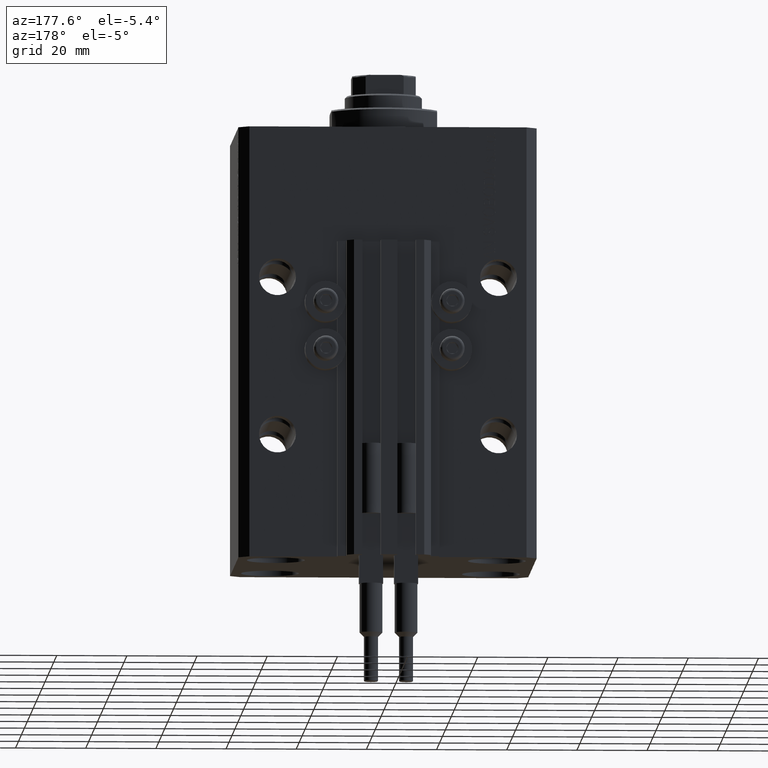
[diagram: clean part render]
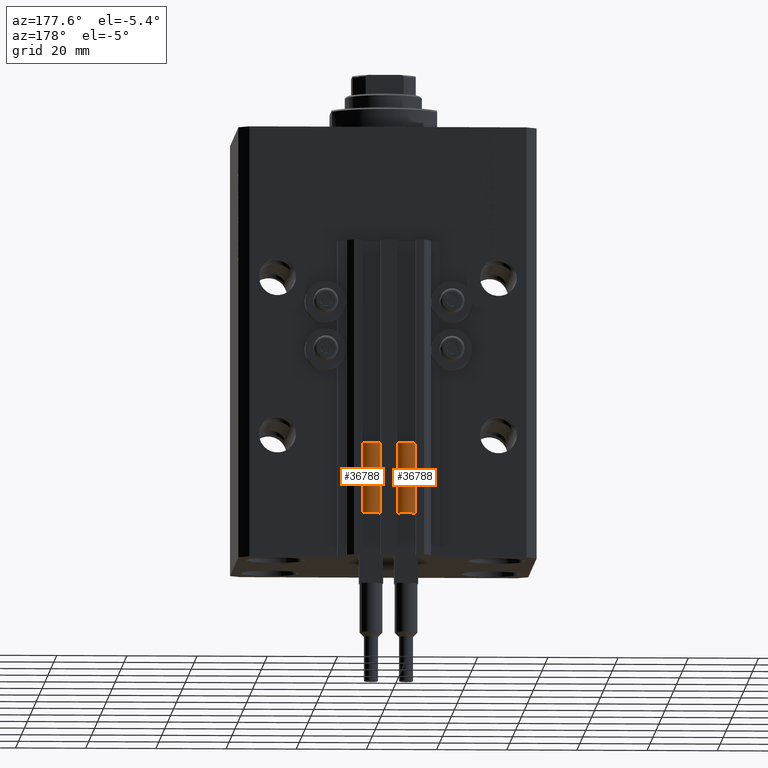
[diagram: same view with one multi-face feature highlighted, each face labeled with its STEP entity id]
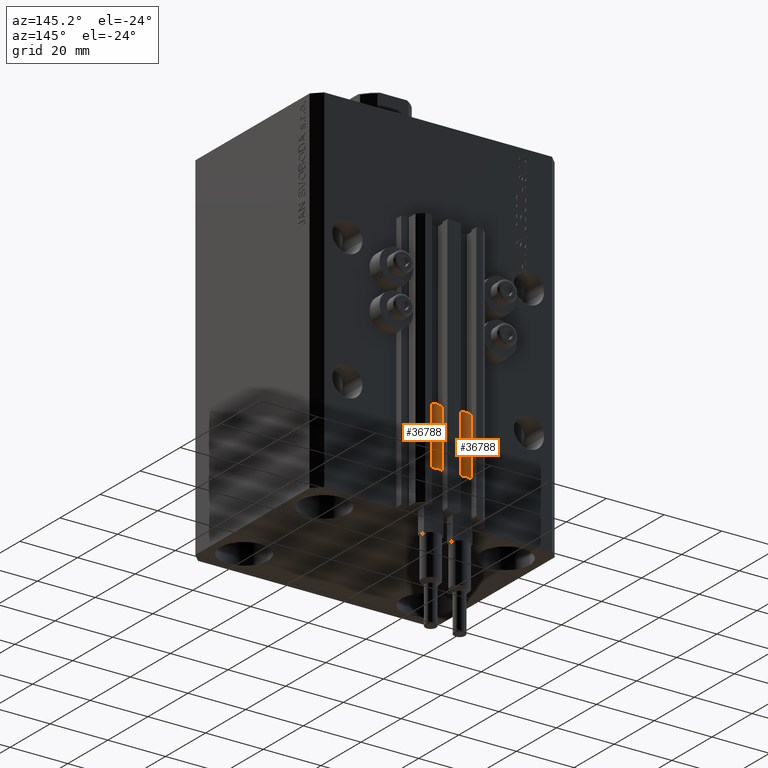
[diagram: same view with one multi-face feature highlighted, each face labeled with its STEP entity id]
A machine part, auxiliary view. The highlighted faces form ONE feature: a constant-radius fillet chain: 2 tangent blend faces with common blend radius 3.4 mm. The faces share edges in the B-rep.
A second angle (auxiliary view) of the same feature is appended — it is thin or edge-on in the first view.
Their STEP definitions:
[1] entity #36788 (Cylinder):
#1602 = DIRECTION ( 'NONE',  ( 1.000000000000000000, 0.000000000000000000, 0.000000000000000000 ) ) ;
#3159 = VERTEX_POINT ( 'NONE', #19286 ) ;
#3379 = CIRCLE ( 'NONE', #27076, 3.400000000000000355 ) ;
#5954 = CIRCLE ( 'NONE', #33616, 3.400000000000000355 ) ;
#6046 = DIRECTION ( 'NONE',  ( 1.000000000000000000, 0.000000000000000000, 0.000000000000000000 ) ) ;
#7261 = EDGE_CURVE ( 'NONE', #41343, #38492, #40167, .T. ) ;
#8473 = DIRECTION ( 'NONE',  ( -0.000000000000000000, -0.000000000000000000, -1.000000000000000000 ) ) ;
#9043 = CARTESIAN_POINT ( 'NONE',  ( 0.000000000000000000, 0.000000000000000000, 0.000000000000000000 ) ) ;
#9522 = DIRECTION ( 'NONE',  ( 0.000000000000000000, 0.000000000000000000, 1.000000000000000000 ) ) ;
#10007 = CARTESIAN_POINT ( 'NONE',  ( 0.000000000000000000, 0.000000000000000000, 20.00000000000000000 ) ) ;
#13118 = DIRECTION ( 'NONE',  ( -0.000000000000000000, -0.000000000000000000, -1.000000000000000000 ) ) ;
#13384 = VERTEX_POINT ( 'NONE', #46524 ) ;
#15469 = ORIENTED_EDGE ( 'NONE', *, *, #28868, .F. ) ;
#16060 = EDGE_CURVE ( 'NONE', #38492, #3159, #16823, .T. ) ;
#16823 = LINE ( 'NONE', #17064, #28538 ) ;
#17064 = CARTESIAN_POINT ( 'NONE',  ( -3.400000000000000355, 0.000000000000000000, 20.00000000000000000 ) ) ;
#18481 = ORIENTED_EDGE ( 'NONE', *, *, #26977, .T. ) ;
#19286 = CARTESIAN_POINT ( 'NONE',  ( -3.400000000000000355, 0.000000000000000000, 0.000000000000000000 ) ) ;
#20789 = DIRECTION ( 'NONE',  ( 1.000000000000000000, 0.000000000000000000, 0.000000000000000000 ) ) ;
#21029 = CARTESIAN_POINT ( 'NONE',  ( 0.000000000000000000, 0.000000000000000000, 20.00000000000000000 ) ) ;
#22788 = AXIS2_PLACEMENT_3D ( 'NONE', #21029, #28453, #20789 ) ;
#23760 = CARTESIAN_POINT ( 'NONE',  ( 0.000000000000000000, 0.000000000000000000, 20.00000000000000000 ) ) ;
#24118 = DIRECTION ( 'NONE',  ( 0.000000000000000000, 0.000000000000000000, 1.000000000000000000 ) ) ;
#24727 = FACE_OUTER_BOUND ( 'NONE', #35965, .T. ) ;
#26167 = DIRECTION ( 'NONE',  ( 0.000000000000000000, 0.000000000000000000, 1.000000000000000000 ) ) ;
#26977 = EDGE_CURVE ( 'NONE', #46535, #40571, #27259, .T. ) ;
#27076 = AXIS2_PLACEMENT_3D ( 'NONE', #10007, #9522, #1602 ) ;
#27259 = LINE ( 'NONE', #42346, #31755 ) ;
#28453 = DIRECTION ( 'NONE',  ( 0.000000000000000000, 0.000000000000000000, 1.000000000000000000 ) ) ;
#28538 = VECTOR ( 'NONE', #39070, 1000.000000000000000 ) ;
#28868 = EDGE_CURVE ( 'NONE', #13384, #41343, #3379, .T. ) ;
#29656 = CARTESIAN_POINT ( 'NONE',  ( -3.399999999999999467, -4.915049848600952119E-16, 20.00000000000000000 ) ) ;
#30188 = ORIENTED_EDGE ( 'NONE', *, *, #33567, .F. ) ;
#31269 = ORIENTED_EDGE ( 'NONE', *, *, #7261, .F. ) ;
#31755 = VECTOR ( 'NONE', #8473, 1000.000000000000000 ) ;
#31959 = AXIS2_PLACEMENT_3D ( 'NONE', #37053, #26167, #37532 ) ;
#32766 = AXIS2_PLACEMENT_3D ( 'NONE', #23760, #13118, #38843 ) ;
#32791 = CARTESIAN_POINT ( 'NONE',  ( -3.051229260478471428, 1.500000000000000000, 20.00000000000000000 ) ) ;
#32850 = CARTESIAN_POINT ( 'NONE',  ( 3.400000000000000355, 0.000000000000000000, 20.00000000000000000 ) ) ;
#33567 = EDGE_CURVE ( 'NONE', #46535, #13384, #36705, .T. ) ;
#33616 = AXIS2_PLACEMENT_3D ( 'NONE', #9043, #24118, #6046 ) ;
#35965 = EDGE_LOOP ( 'NONE', ( #30188, #18481, #40166, #48631, #31269, #15469 ) ) ;
#36705 = CIRCLE ( 'NONE', #31959, 3.400000000000000355 ) ;
#36788 = ADVANCED_FACE ( 'NONE', ( #24727 ), #42557, .T. ) ;
#37053 = CARTESIAN_POINT ( 'NONE',  ( 0.000000000000000000, 0.000000000000000000, 20.00000000000000000 ) ) ;
#37098 = CARTESIAN_POINT ( 'NONE',  ( 3.400000000000000355, 4.163799117101001052E-16, 0.000000000000000000 ) ) ;
#37532 = DIRECTION ( 'NONE',  ( 1.000000000000000000, 0.000000000000000000, 0.000000000000000000 ) ) ;
#38492 = VERTEX_POINT ( 'NONE', #29656 ) ;
#38843 = DIRECTION ( 'NONE',  ( -1.000000000000000000, 0.000000000000000000, 0.000000000000000000 ) ) ;
#39070 = DIRECTION ( 'NONE',  ( -0.000000000000000000, -0.000000000000000000, -1.000000000000000000 ) ) ;
#39137 = EDGE_CURVE ( 'NONE', #40571, #3159, #5954, .T. ) ;
#40166 = ORIENTED_EDGE ( 'NONE', *, *, #39137, .T. ) ;
#40167 = CIRCLE ( 'NONE', #22788, 3.400000000000000355 ) ;
#40571 = VERTEX_POINT ( 'NONE', #37098 ) ;
#41343 = VERTEX_POINT ( 'NONE', #32791 ) ;
#42346 = CARTESIAN_POINT ( 'NONE',  ( 3.400000000000000355, 4.163799117101001052E-16, 20.00000000000000000 ) ) ;
#42557 = CYLINDRICAL_SURFACE ( 'NONE', #32766, 3.400000000000000355 ) ;
#46524 = CARTESIAN_POINT ( 'NONE',  ( 3.051229260478471428, 1.500000000000000000, 20.00000000000000000 ) ) ;
#46535 = VERTEX_POINT ( 'NONE', #32850 ) ;
#48631 = ORIENTED_EDGE ( 'NONE', *, *, #16060, .F. ) ;
[2] entity #36788 (Cylinder):
#1602 = DIRECTION ( 'NONE',  ( 1.000000000000000000, 0.000000000000000000, 0.000000000000000000 ) ) ;
#3159 = VERTEX_POINT ( 'NONE', #19286 ) ;
#3379 = CIRCLE ( 'NONE', #27076, 3.400000000000000355 ) ;
#5954 = CIRCLE ( 'NONE', #33616, 3.400000000000000355 ) ;
#6046 = DIRECTION ( 'NONE',  ( 1.000000000000000000, 0.000000000000000000, 0.000000000000000000 ) ) ;
#7261 = EDGE_CURVE ( 'NONE', #41343, #38492, #40167, .T. ) ;
#8473 = DIRECTION ( 'NONE',  ( -0.000000000000000000, -0.000000000000000000, -1.000000000000000000 ) ) ;
#9043 = CARTESIAN_POINT ( 'NONE',  ( 0.000000000000000000, 0.000000000000000000, 0.000000000000000000 ) ) ;
#9522 = DIRECTION ( 'NONE',  ( 0.000000000000000000, 0.000000000000000000, 1.000000000000000000 ) ) ;
#10007 = CARTESIAN_POINT ( 'NONE',  ( 0.000000000000000000, 0.000000000000000000, 20.00000000000000000 ) ) ;
#13118 = DIRECTION ( 'NONE',  ( -0.000000000000000000, -0.000000000000000000, -1.000000000000000000 ) ) ;
#13384 = VERTEX_POINT ( 'NONE', #46524 ) ;
#15469 = ORIENTED_EDGE ( 'NONE', *, *, #28868, .F. ) ;
#16060 = EDGE_CURVE ( 'NONE', #38492, #3159, #16823, .T. ) ;
#16823 = LINE ( 'NONE', #17064, #28538 ) ;
#17064 = CARTESIAN_POINT ( 'NONE',  ( -3.400000000000000355, 0.000000000000000000, 20.00000000000000000 ) ) ;
#18481 = ORIENTED_EDGE ( 'NONE', *, *, #26977, .T. ) ;
#19286 = CARTESIAN_POINT ( 'NONE',  ( -3.400000000000000355, 0.000000000000000000, 0.000000000000000000 ) ) ;
#20789 = DIRECTION ( 'NONE',  ( 1.000000000000000000, 0.000000000000000000, 0.000000000000000000 ) ) ;
#21029 = CARTESIAN_POINT ( 'NONE',  ( 0.000000000000000000, 0.000000000000000000, 20.00000000000000000 ) ) ;
#22788 = AXIS2_PLACEMENT_3D ( 'NONE', #21029, #28453, #20789 ) ;
#23760 = CARTESIAN_POINT ( 'NONE',  ( 0.000000000000000000, 0.000000000000000000, 20.00000000000000000 ) ) ;
#24118 = DIRECTION ( 'NONE',  ( 0.000000000000000000, 0.000000000000000000, 1.000000000000000000 ) ) ;
#24727 = FACE_OUTER_BOUND ( 'NONE', #35965, .T. ) ;
#26167 = DIRECTION ( 'NONE',  ( 0.000000000000000000, 0.000000000000000000, 1.000000000000000000 ) ) ;
#26977 = EDGE_CURVE ( 'NONE', #46535, #40571, #27259, .T. ) ;
#27076 = AXIS2_PLACEMENT_3D ( 'NONE', #10007, #9522, #1602 ) ;
#27259 = LINE ( 'NONE', #42346, #31755 ) ;
#28453 = DIRECTION ( 'NONE',  ( 0.000000000000000000, 0.000000000000000000, 1.000000000000000000 ) ) ;
#28538 = VECTOR ( 'NONE', #39070, 1000.000000000000000 ) ;
#28868 = EDGE_CURVE ( 'NONE', #13384, #41343, #3379, .T. ) ;
#29656 = CARTESIAN_POINT ( 'NONE',  ( -3.399999999999999467, -4.915049848600952119E-16, 20.00000000000000000 ) ) ;
#30188 = ORIENTED_EDGE ( 'NONE', *, *, #33567, .F. ) ;
#31269 = ORIENTED_EDGE ( 'NONE', *, *, #7261, .F. ) ;
#31755 = VECTOR ( 'NONE', #8473, 1000.000000000000000 ) ;
#31959 = AXIS2_PLACEMENT_3D ( 'NONE', #37053, #26167, #37532 ) ;
#32766 = AXIS2_PLACEMENT_3D ( 'NONE', #23760, #13118, #38843 ) ;
#32791 = CARTESIAN_POINT ( 'NONE',  ( -3.051229260478471428, 1.500000000000000000, 20.00000000000000000 ) ) ;
#32850 = CARTESIAN_POINT ( 'NONE',  ( 3.400000000000000355, 0.000000000000000000, 20.00000000000000000 ) ) ;
#33567 = EDGE_CURVE ( 'NONE', #46535, #13384, #36705, .T. ) ;
#33616 = AXIS2_PLACEMENT_3D ( 'NONE', #9043, #24118, #6046 ) ;
#35965 = EDGE_LOOP ( 'NONE', ( #30188, #18481, #40166, #48631, #31269, #15469 ) ) ;
#36705 = CIRCLE ( 'NONE', #31959, 3.400000000000000355 ) ;
#36788 = ADVANCED_FACE ( 'NONE', ( #24727 ), #42557, .T. ) ;
#37053 = CARTESIAN_POINT ( 'NONE',  ( 0.000000000000000000, 0.000000000000000000, 20.00000000000000000 ) ) ;
#37098 = CARTESIAN_POINT ( 'NONE',  ( 3.400000000000000355, 4.163799117101001052E-16, 0.000000000000000000 ) ) ;
#37532 = DIRECTION ( 'NONE',  ( 1.000000000000000000, 0.000000000000000000, 0.000000000000000000 ) ) ;
#38492 = VERTEX_POINT ( 'NONE', #29656 ) ;
#38843 = DIRECTION ( 'NONE',  ( -1.000000000000000000, 0.000000000000000000, 0.000000000000000000 ) ) ;
#39070 = DIRECTION ( 'NONE',  ( -0.000000000000000000, -0.000000000000000000, -1.000000000000000000 ) ) ;
#39137 = EDGE_CURVE ( 'NONE', #40571, #3159, #5954, .T. ) ;
#40166 = ORIENTED_EDGE ( 'NONE', *, *, #39137, .T. ) ;
#40167 = CIRCLE ( 'NONE', #22788, 3.400000000000000355 ) ;
#40571 = VERTEX_POINT ( 'NONE', #37098 ) ;
#41343 = VERTEX_POINT ( 'NONE', #32791 ) ;
#42346 = CARTESIAN_POINT ( 'NONE',  ( 3.400000000000000355, 4.163799117101001052E-16, 20.00000000000000000 ) ) ;
#42557 = CYLINDRICAL_SURFACE ( 'NONE', #32766, 3.400000000000000355 ) ;
#46524 = CARTESIAN_POINT ( 'NONE',  ( 3.051229260478471428, 1.500000000000000000, 20.00000000000000000 ) ) ;
#46535 = VERTEX_POINT ( 'NONE', #32850 ) ;
#48631 = ORIENTED_EDGE ( 'NONE', *, *, #16060, .F. ) ;